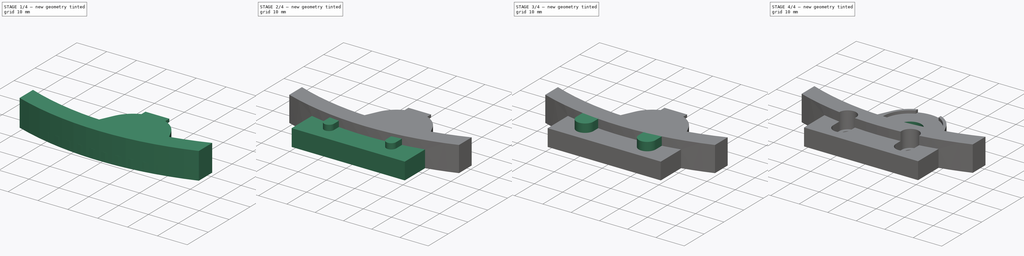
[diagram: build sequence overview — one tinted view per stage of 4, left to right]
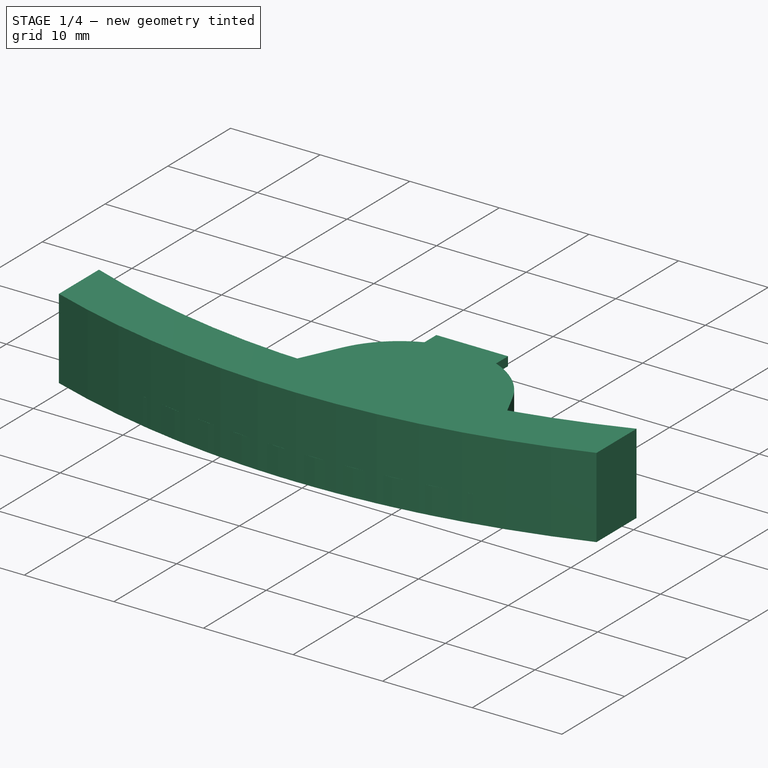
[diagram: stage 1 of 4 — iso view after this stage's code; geometry added in this stage tinted green]
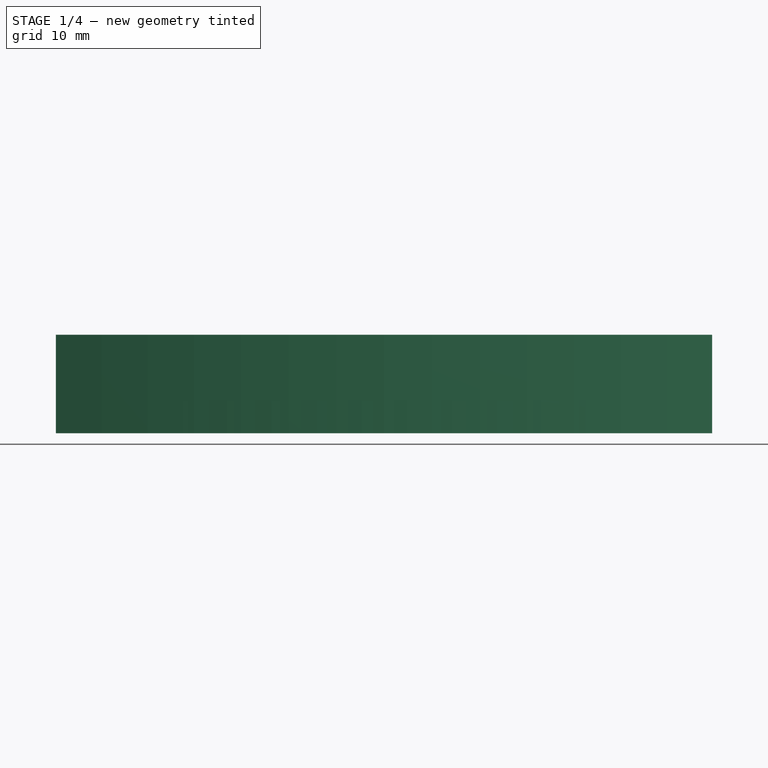
[diagram: stage 1 of 4 — front view after this stage's code; geometry added in this stage tinted green]
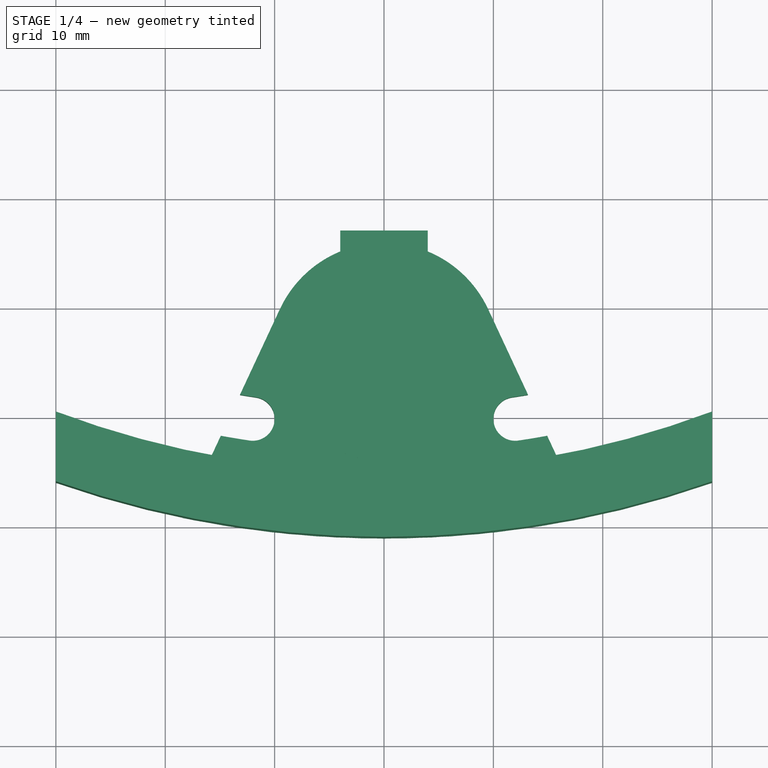
[diagram: stage 1 of 4 — top view after this stage's code; geometry added in this stage tinted green]
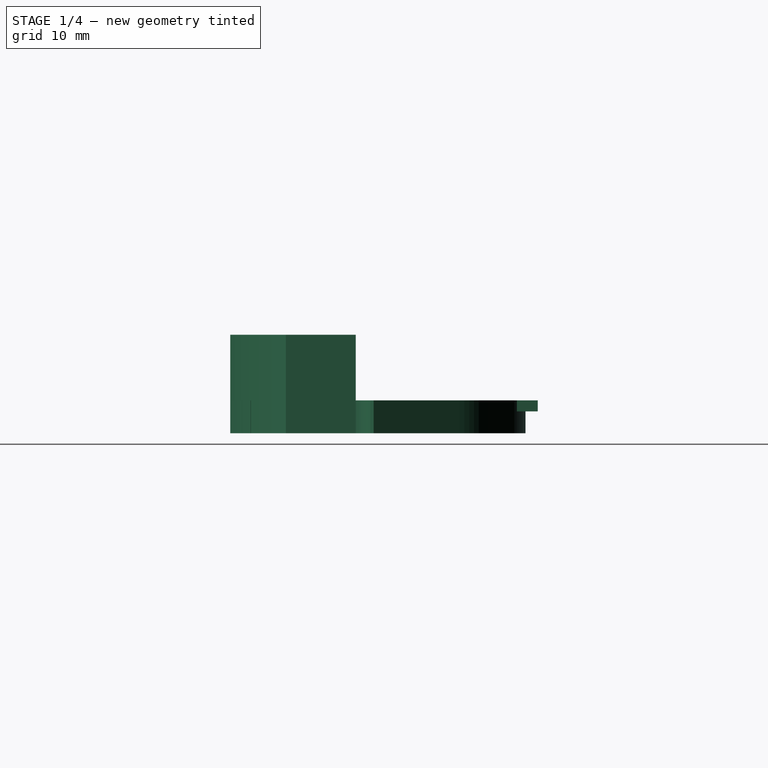
[diagram: stage 1 of 4 — right view after this stage's code; geometry added in this stage tinted green]
FCSTD DOCUMENT  (FreeCAD 0.14R3692 (Git))
Label: Mount_FSR_V2_Base
License: CC-BY 3.0
LicenseURL: http://creativecommons.org/licenses/by/3.0/
objects: Sketcher::SketchObject×7, PartDesign::Pad×6, Part::Cut×3, Part::MultiFuse×1, PartDesign::Pocket×1
note: 25 computed .brp shape members not serialized (recipe doc carries the construction recipe); baked Part::Feature solids carry a one-line shape summary decoded from their .brp

FEATURE [PartDesign::Pad] Pad002  label="Frame_Pad"
  Length = 9
  Length2 = 100
  Sketch = -> Sketch002
  Type = 0
FEATURE [PartDesign::Pad] Pad003  label="Base_Pad"
  Length = 3
  Length2 = 100
  Sketch = -> Sketch001
  Type = 0
FEATURE [Sketcher::SketchObject] Sketch005  label="FsrGroove_Sketch"
  Placement = pos=(0,0,2) rot=(0,0,1;0rad)
  sketch-geometry (4):
    g0: ArcOfCircle CenterX=0 CenterY=-74.5 CenterZ=0 NormalX=0 NormalY=0 NormalZ=1 Radius=9.5 StartAngle=2.0054 EndAngle=7.41938
    g1: LineSegment StartX=-4 StartY=-62.8832 StartZ=0 EndX=4 EndY=-62.8832 EndZ=0
    g2: LineSegment StartX=-4 StartY=-62.8832 StartZ=0 EndX=-4 EndY=-65.8832 EndZ=0
    g3: LineSegment StartX=4 StartY=-62.8832 StartZ=0 EndX=4 EndY=-65.8832 EndZ=0
  constraints (12):
    c: PointOnObject(g0,g-2)
    c: Radius(g0) = 9.5
    c: DistanceY(g-1,g0) = -74.5
    c: Symmetric(g1,g1,g-2)
    c: DistanceX(g-1,g1) = -4
    c: Coincident(g2,g1)
    c: Coincident(g2,g0)
    c: Vertical(g2)
    c: Coincident(g3,g1)
    c: Coincident(g3,g0)
    c: Vertical(g3)
    c: DistanceY(g1,g0) = -3
FEATURE [PartDesign::Pad] Pad005  label="FsrGroove_Pad"
  Length = 1
  Length2 = 100
  Placement = pos=(0,0,2) rot=(0,0,1;0rad)
  Sketch = -> Sketch005
  Type = 0
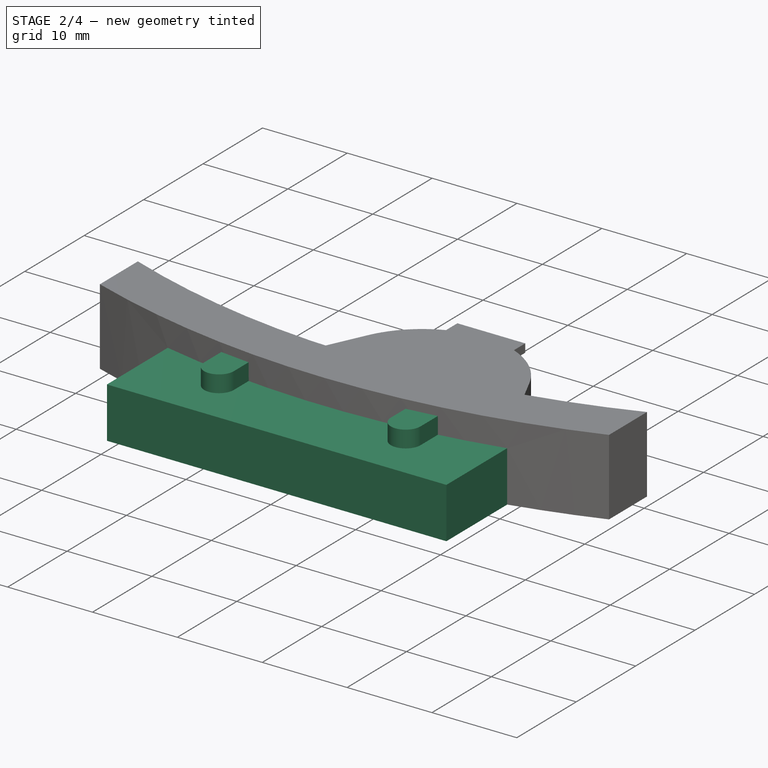
[diagram: stage 2 of 4 — iso view after this stage's code; geometry added in this stage tinted green]
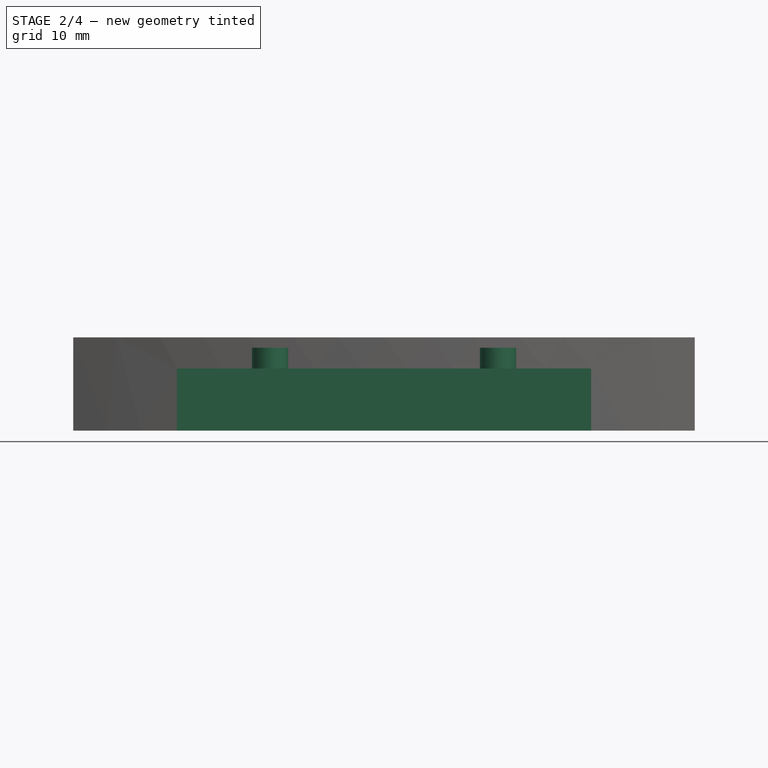
[diagram: stage 2 of 4 — front view after this stage's code; geometry added in this stage tinted green]
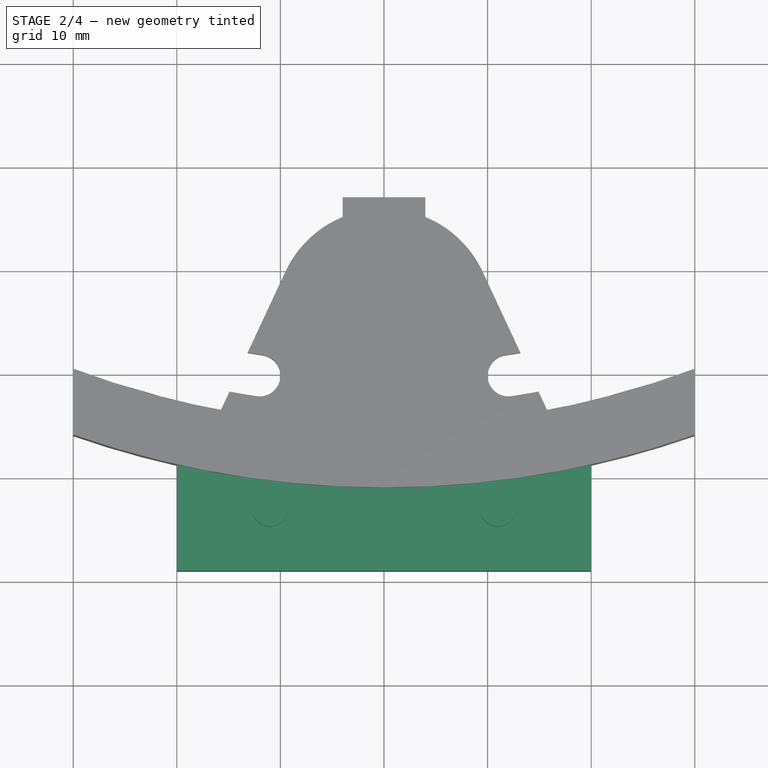
[diagram: stage 2 of 4 — top view after this stage's code; geometry added in this stage tinted green]
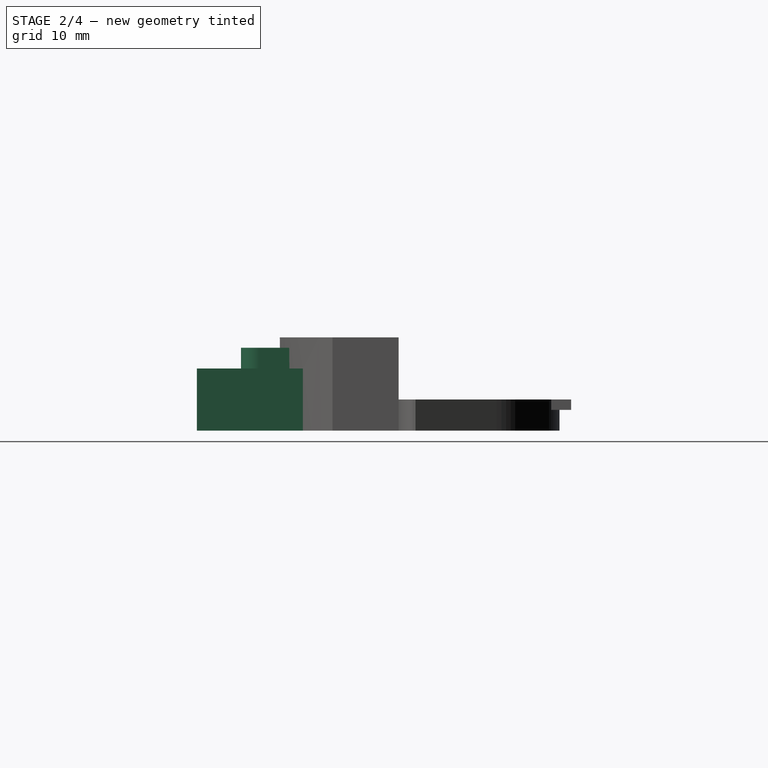
[diagram: stage 2 of 4 — right view after this stage's code; geometry added in this stage tinted green]
FEATURE [Sketcher::SketchObject] Sketch  label="Back_Sketch"
  sketch-geometry (4):
    g0: ArcOfCircle CenterX=0 CenterY=0 CenterZ=0 NormalX=0 NormalY=0 NormalZ=1 Radius=85 StartAngle=4.47487 EndAngle=4.94991
    g1: LineSegment StartX=20 StartY=-82.6136 StartZ=0 EndX=20 EndY=-99 EndZ=0
    g2: LineSegment StartX=20 StartY=-99 StartZ=0 EndX=-20 EndY=-99 EndZ=0
    g3: LineSegment StartX=-20 StartY=-99 StartZ=0 EndX=-20 EndY=-82.6136 EndZ=0
  constraints (11):
    c: Coincident(g0,g-1)
    c: Radius(g0) = 85
    c: Coincident(g1,g2)
    c: Coincident(g2,g3)
    c: Coincident(g3,g0)
    c: Coincident(g1,g0)
    c: Symmetric(g2,g1,g-2)
    c: Perpendicular(g3,g2)
    c: DistanceY(g-1,g1) = -99
    c: DistanceX(g2,g1) = 40
    c: Symmetric(g0,g0,g-2)
FEATURE [Sketcher::SketchObject] Sketch001  label="Base_Sketch"
  sketch-geometry (12):
    g0: ArcOfCircle CenterX=0 CenterY=-74.5 CenterZ=0 NormalX=0 NormalY=0 NormalZ=1 Radius=10.5 StartAngle=0.436329 EndAngle=2.70526
    g1: ArcOfCircle CenterX=0 CenterY=0 CenterZ=0 NormalX=0 NormalY=0 NormalZ=1 Radius=91 StartAngle=4.50876 EndAngle=4.91602
    g2: LineSegment StartX=-18.4028 StartY=-89.1198 StartZ=0 EndX=-14.9187 EndY=-81.6482 EndZ=0
    g3: ArcOfCircle CenterX=0 CenterY=0 CenterZ=0 NormalX=0 NormalY=0 NormalZ=1 Radius=83 StartAngle=4.53166 EndAngle=4.56369
    g4: ArcOfCircle CenterX=0 CenterY=0 CenterZ=0 NormalX=0 NormalY=0 NormalZ=1 Radius=79 StartAngle=4.54492 EndAngle=4.56369
    g5: ArcOfCircle CenterX=-12 CenterY=-80.1062 CenterZ=0 NormalX=0 NormalY=0 NormalZ=1 Radius=2 StartAngle=4.56369 EndAngle=7.70529
    g6: LineSegment StartX=-13.1685 StartY=-77.8947 StartZ=0 EndX=-9.51625 EndY=-70.0625 EndZ=0
    g7: ArcOfCircle CenterX=12 CenterY=-80.1062 CenterZ=0 NormalX=0 NormalY=0 NormalZ=1 Radius=2 StartAngle=1.71949 EndAngle=4.86108
    g8: ArcOfCircle CenterX=0 CenterY=0 CenterZ=0 NormalX=0 NormalY=0 NormalZ=1 Radius=79 StartAngle=4.86108 EndAngle=4.87986
    g9: ArcOfCircle CenterX=0 CenterY=0 CenterZ=0 NormalX=0 NormalY=0 NormalZ=1 Radius=83 StartAngle=4.86108 EndAngle=4.89312
    g10: LineSegment StartX=18.4028 StartY=-89.1198 StartZ=0 EndX=14.9187 EndY=-81.6482 EndZ=0
    g11: LineSegment StartX=9.51625 StartY=-70.0625 StartZ=0 EndX=13.1685 EndY=-77.8947 EndZ=0
  constraints (37):
    c: Radius(g0) = 10.5
    c: DistanceY(g-1,g0) = -74.5
    c: Coincident(g1,g-1)
    c: Coincident(g2,g1)
    c: Coincident(g6,g0)
    c: Tangent(g0,g2)
    c: PointOnObject(g0,g-2)
    c: Coincident(g3,g-1)
    c: Coincident(g4,g-1)
    c: Radius(g3) = 83
    c: Radius(g4) = 79
    c: Distance(g-1,g5) = 81
    c: Tangent(g3,g5)
    c: Tangent(g4,g5)
    c: Coincident(g5,g3)
    c: Coincident(g5,g4)
    c: DistanceX(g-1,g5) = -12
    c: Coincident(g2,g3)
    c: Coincident(g6,g4)
    c: Tangent(g2,g6)
    c: Symmetric(g4,g8,g-2)
    c: Symmetric(g5,g7,g-2)
    c: Symmetric(g2,g9,g-2)
    c: Coincident(g8,g-1)
    c: Coincident(g8,g7)
    c: Coincident(g9,g-1)
    c: Coincident(g9,g7)
    c: Coincident(g10,g1)
    c: Coincident(g10,g9)
    c: Coincident(g11,g0)
    c: Coincident(g11,g8)
    c: Symmetric(g0,g0,g-2)
    c: Symmetric(g7,g4,g-2)
    c: Symmetric(g3,g7,g-2)
    c: Symmetric(g1,g1,g-2)
    c: Angle(g-2,g2) = 2.70526
    c: Radius(g1) = 91
FEATURE [Sketcher::SketchObject] Sketch002  label="Frame_Sketch"
  sketch-geometry (4):
    g0: ArcOfCircle CenterX=0 CenterY=0 CenterZ=0 NormalX=0 NormalY=0 NormalZ=1 Radius=85 StartAngle=4.35168 EndAngle=5.0731
    g1: ArcOfCircle CenterX=0 CenterY=0 CenterZ=0 NormalX=0 NormalY=0 NormalZ=1 Radius=91 StartAngle=4.37643 EndAngle=5.04834
    g2: LineSegment StartX=30 StartY=-79.5299 StartZ=0 EndX=30 EndY=-85.9127 EndZ=0
    g3: LineSegment StartX=-30 StartY=-85.9127 StartZ=0 EndX=-30 EndY=-79.5299 EndZ=0
  constraints (12):
    c: Coincident(g0,g-1)
    c: Coincident(g1,g-1)
    c: Radius(g0) = 85
    c: Vertical(g3)
    c: Coincident(g3,g0)
    c: Coincident(g2,g0)
    c: Coincident(g2,g1)
    c: Coincident(g3,g1)
    c: Symmetric(g0,g0,g-2)
    c: DistanceX(g1,g1) = 60
    c: Symmetric(g1,g1,g-2)
    c: Radius(g1) = 91
FEATURE [Sketcher::SketchObject] Sketch003  label="ThroughHole_Sketch"
  sketch-geometry (8):
    g0: ArcOfCircle CenterX=-11 CenterY=-90 CenterZ=0 NormalX=0 NormalY=0 NormalZ=1 Radius=1.75 StartAngle=6.28318 EndAngle=9.42478
    g1: ArcOfCircle CenterX=11 CenterY=-90 CenterZ=0 NormalX=0 NormalY=0 NormalZ=1 Radius=1.75 StartAngle=2.58942e-07 EndAngle=3.1416
    g2: ArcOfCircle CenterX=-11 CenterY=-93 CenterZ=0 NormalX=0 NormalY=0 NormalZ=1 Radius=1.75 StartAngle=3.14159 EndAngle=6.28319
    g3: ArcOfCircle CenterX=11 CenterY=-93 CenterZ=0 NormalX=0 NormalY=0 NormalZ=1 Radius=1.75 StartAngle=3.14159 EndAngle=6.28319
    g4: LineSegment StartX=-12.75 StartY=-93 StartZ=0 EndX=-12.75 EndY=-90 EndZ=0
    g5: LineSegment StartX=9.25 StartY=-90 StartZ=0 EndX=9.25 EndY=-93 EndZ=0
    g6: LineSegment StartX=12.75 StartY=-90 StartZ=0 EndX=12.75 EndY=-93 EndZ=0
    g7: LineSegment StartX=-9.25 StartY=-93 StartZ=0 EndX=-9.25 EndY=-90 EndZ=0
  constraints (24):
    c: DistanceY(g-1,g0) = -90
    c: Radius(g2) = 1.75
    c: DistanceY(g2,g0) = 3
    c: Coincident(g4,g2)
    c: Coincident(g0,g4)
    c: Coincident(g5,g1)
    c: Coincident(g5,g3)
    c: Coincident(g6,g1)
    c: Coincident(g6,g3)
    c: Symmetric(g0,g1,g-2)
    c: Symmetric(g3,g2,g-2)
    c: Tangent(g4,g0)
    c: Tangent(g4,g2)
    c: Coincident(g7,g2)
    c: Coincident(g7,g0)
    c: Vertical(g7)
    c: Tangent(g7,g2)
    c: Tangent(g7,g0)
    c: Vertical(g4)
    c: Symmetric(g1,g0,g-2)
    c: Symmetric(g2,g3,g-2)
    c: Symmetric(g0,g1,g-2)
    c: Symmetric(g2,g3,g-2)
    c: DistanceX(g-1,g2) = -11
FEATURE [PartDesign::Pad] Pad  label="ThroughHole_Pad"
  Length = 8
  Length2 = 100
  Sketch = -> Sketch003
  Type = 0
FEATURE [PartDesign::Pad] Pad001  label="Back_Pad"
  Length = 6
  Length2 = 100
  Sketch = -> Sketch
  Type = 0
FEATURE [Part::MultiFuse] Fusion
  Shapes = -> [Pad001,Pad002,Pad003]
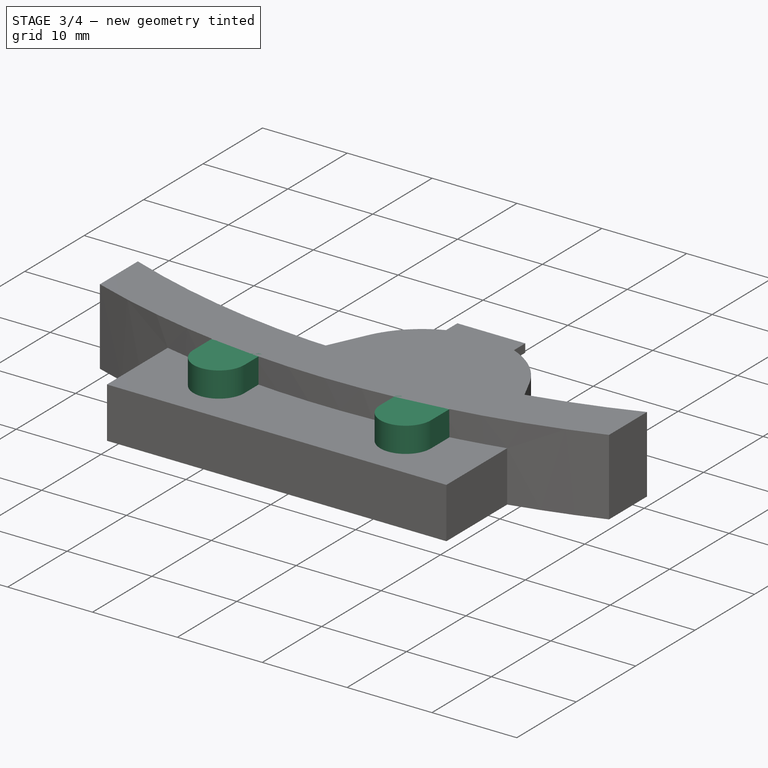
[diagram: stage 3 of 4 — iso view after this stage's code; geometry added in this stage tinted green]
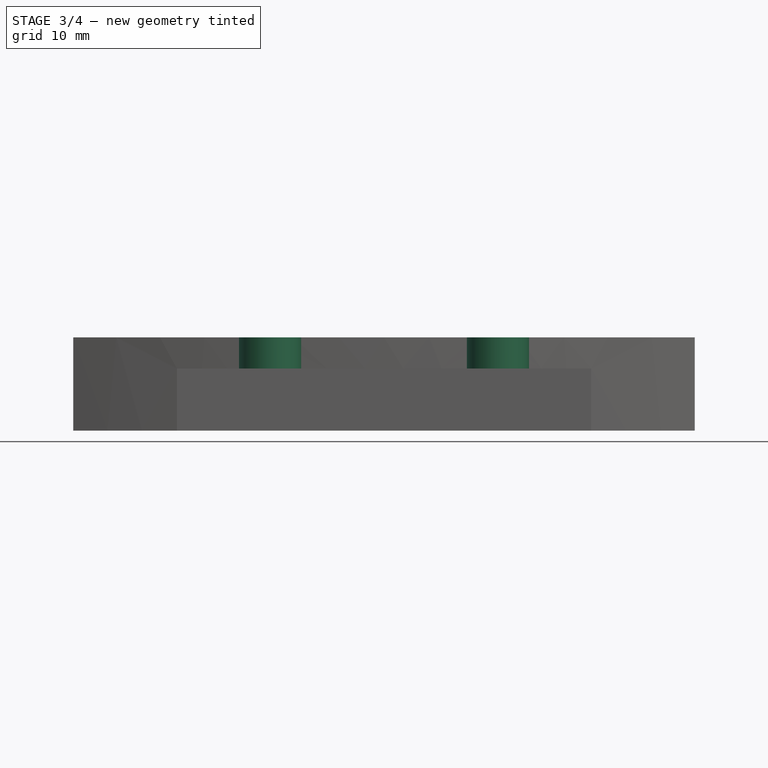
[diagram: stage 3 of 4 — front view after this stage's code; geometry added in this stage tinted green]
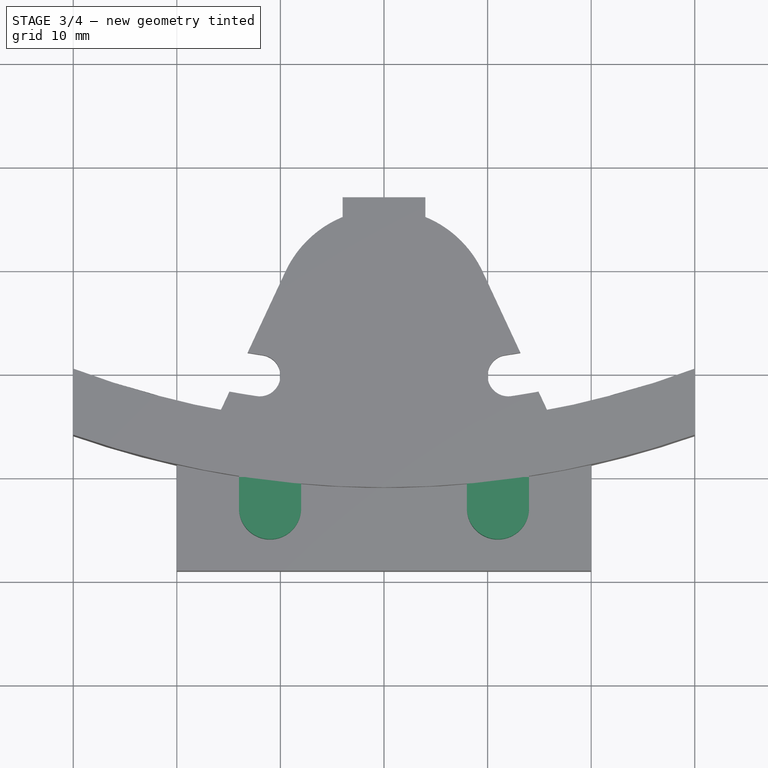
[diagram: stage 3 of 4 — top view after this stage's code; geometry added in this stage tinted green]
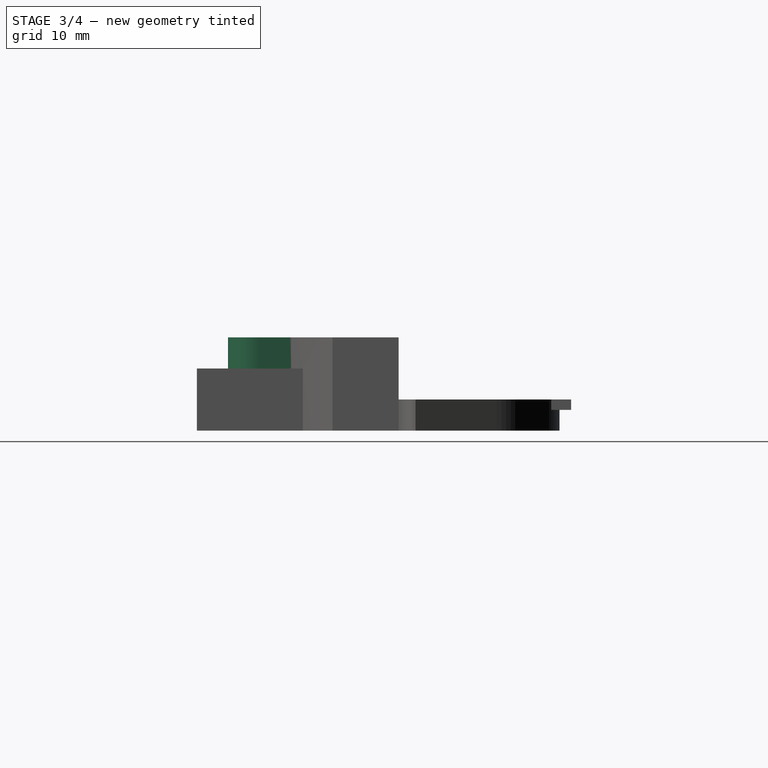
[diagram: stage 3 of 4 — right view after this stage's code; geometry added in this stage tinted green]
FEATURE [Sketcher::SketchObject] Sketch004  label="CounterboreHole_Sketch"
  Placement = pos=(0,0,3) rot=(0,0,1;0rad)
  sketch-geometry (8):
    g0: ArcOfCircle CenterX=-11 CenterY=-90 CenterZ=0 NormalX=0 NormalY=0 NormalZ=1 Radius=3 StartAngle=4.42399e-06 EndAngle=3.14159
    g1: ArcOfCircle CenterX=-11 CenterY=-93 CenterZ=0 NormalX=0 NormalY=0 NormalZ=1 Radius=3 StartAngle=3.14159 EndAngle=6.28318
    g2: ArcOfCircle CenterX=11 CenterY=-90 CenterZ=0 NormalX=0 NormalY=0 NormalZ=1 Radius=3 StartAngle=2.00499e-07 EndAngle=3.14159
    g3: ArcOfCircle CenterX=11 CenterY=-93 CenterZ=0 NormalX=0 NormalY=0 NormalZ=1 Radius=3 StartAngle=3.14159 EndAngle=6.28319
    g4: LineSegment StartX=8 StartY=-90 StartZ=0 EndX=8 EndY=-93 EndZ=0
    g5: LineSegment StartX=14 StartY=-90 StartZ=0 EndX=14 EndY=-93 EndZ=0
    g6: LineSegment StartX=-14 StartY=-90 StartZ=0 EndX=-14 EndY=-93 EndZ=0
    g7: LineSegment StartX=-8 StartY=-93 StartZ=0 EndX=-8 EndY=-90 EndZ=0
  constraints (24):
    c: DistanceY(g-1,g0) = -90
    c: Radius(g1) = 3
    c: Symmetric(g2,g0,g-2)
    c: DistanceY(g0,g1) = -3
    c: Symmetric(g3,g1,g-2)
    c: Coincident(g4,g2)
    c: Coincident(g4,g3)
    c: Coincident(g5,g2)
    c: Coincident(g5,g3)
    c: DistanceX(g-1,g1) = -11
    c: Symmetric(g0,g2,g-2)
    c: Symmetric(g1,g3,g-2)
    c: Symmetric(g2,g0,g-2)
    c: Symmetric(g1,g3,g-2)
    c: Coincident(g6,g0)
    c: Coincident(g6,g1)
    c: Vertical(g6)
    c: Tangent(g6,g1)
    c: Tangent(g6,g0)
    c: Coincident(g7,g1)
    c: Coincident(g7,g0)
    c: Vertical(g7)
    c: Tangent(g7,g1)
    c: Tangent(g7,g0)
FEATURE [PartDesign::Pad] Pad004  label="CounterboreHole_Pad"
  Length = 6
  Length2 = 100
  Placement = pos=(0,0,3) rot=(0,0,1;0rad)
  Sketch = -> Sketch004
  Type = 0
FEATURE [Part::Cut] Cut  label="ThroughHoles_Cut"
  Base = -> Fusion
  Tool = -> Pad
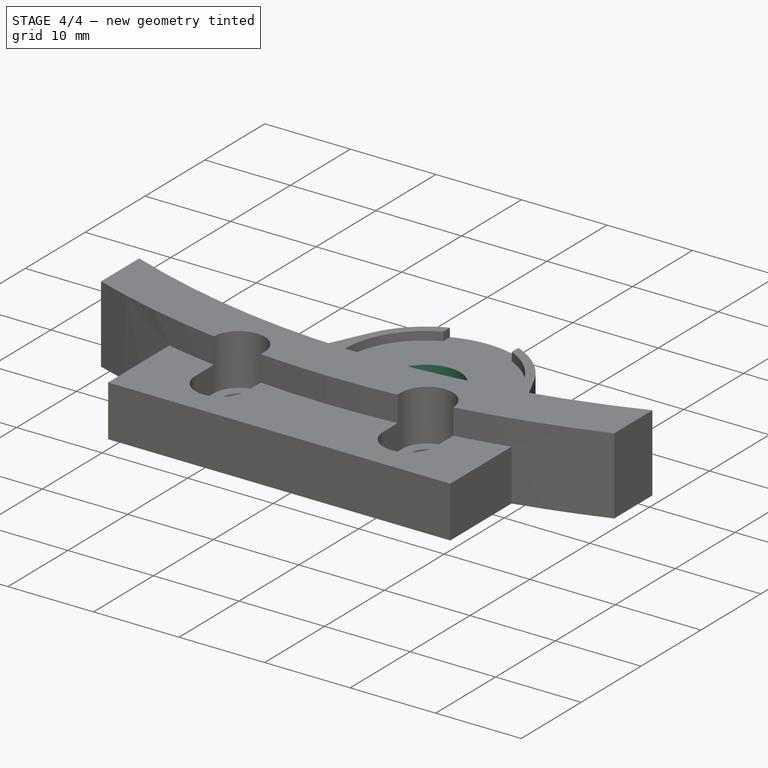
[diagram: stage 4 of 4 — iso view after this stage's code; geometry added in this stage tinted green]
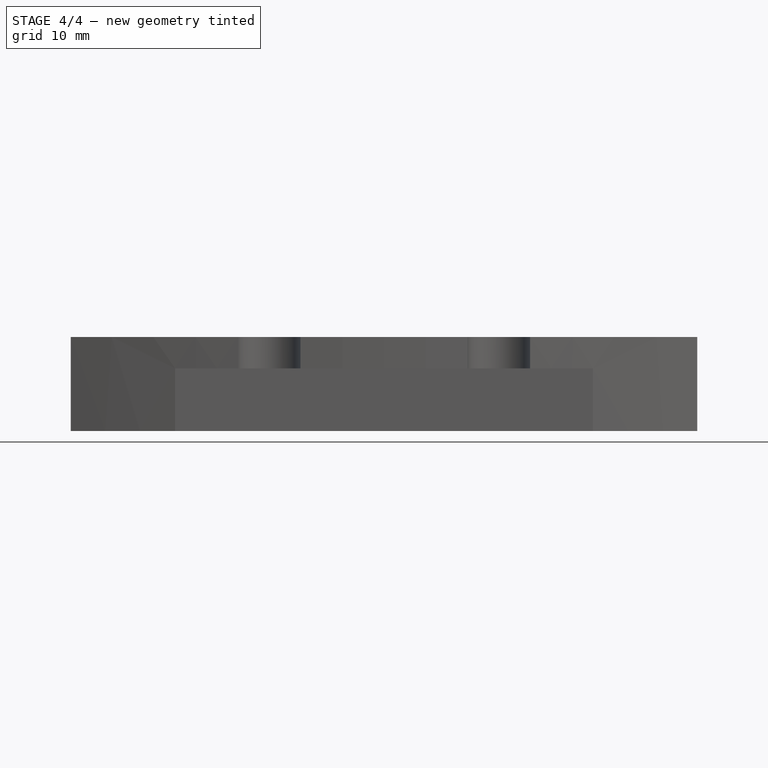
[diagram: stage 4 of 4 — front view after this stage's code; geometry added in this stage tinted green]
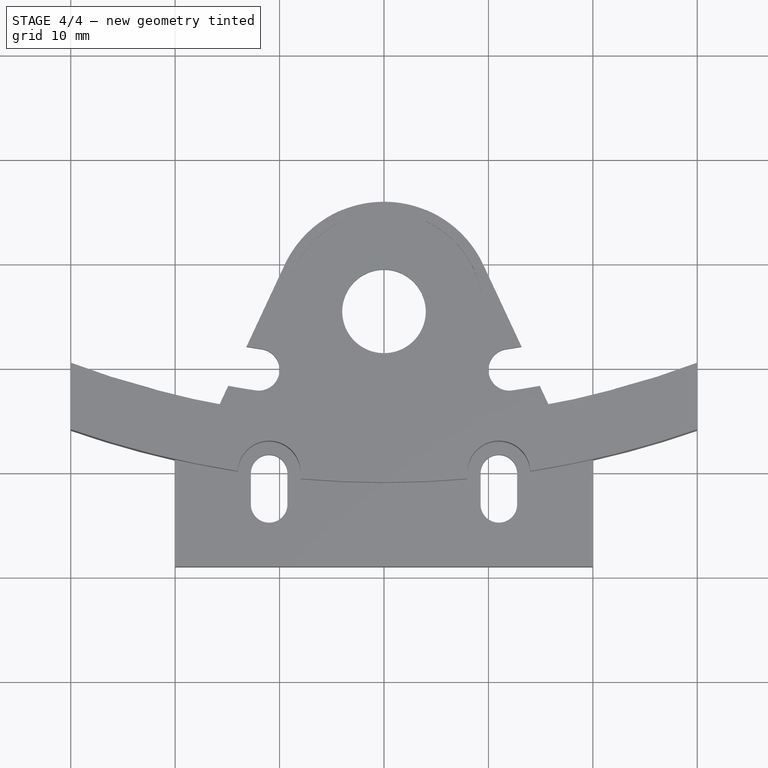
[diagram: stage 4 of 4 — top view after this stage's code; geometry added in this stage tinted green]
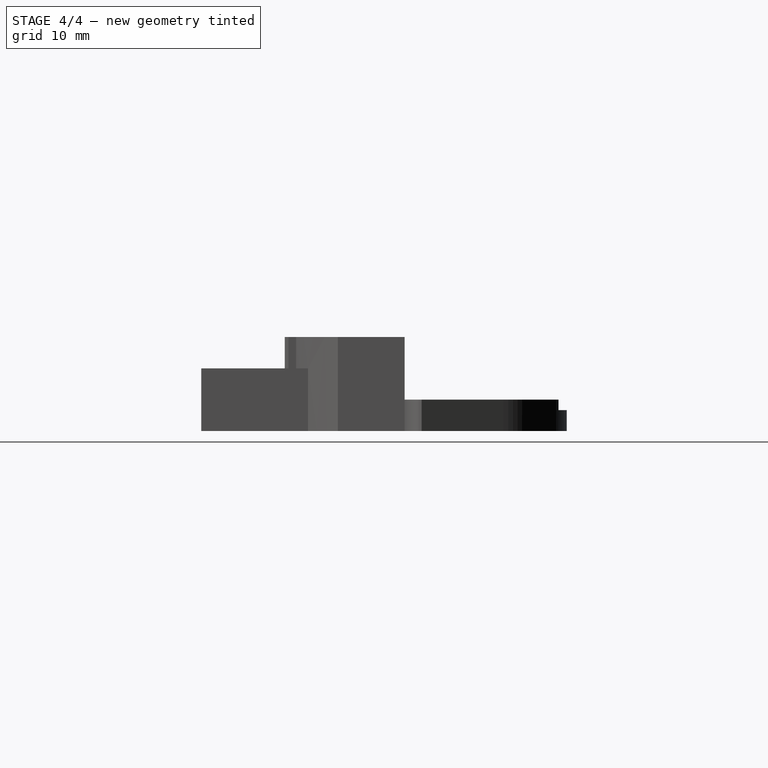
[diagram: stage 4 of 4 — right view after this stage's code; geometry added in this stage tinted green]
FEATURE [Part::Cut] Cut001  label="CounterboreHoles_Cut"
  Base = -> Cut
  Tool = -> Pad004
FEATURE [Part::Cut] Cut002  label="FsrGroove_Cut"
  Base = -> Cut001
  Tool = -> Pad005
FEATURE [Sketcher::SketchObject] Sketch006  label="CenterHole_Sketch"
  ExternalGeometry = -> [Cut002]
  Placement = pos=(0,0,2) rot=(0,0,1;0rad)
  Support = -> Cut002 [Face6]
  sketch-geometry (1):
    g0: Circle CenterX=0 CenterY=-74.5 CenterZ=0 NormalX=0 NormalY=0 NormalZ=1 Radius=4
  constraints (2):
    c: Coincident(g0,g-3)
    c: Radius(g0) = 4
FEATURE [PartDesign::Pocket] Pocket  label="CenterHole_Pocket"
  Length = 5
  Sketch = -> Sketch006
  Type = 1
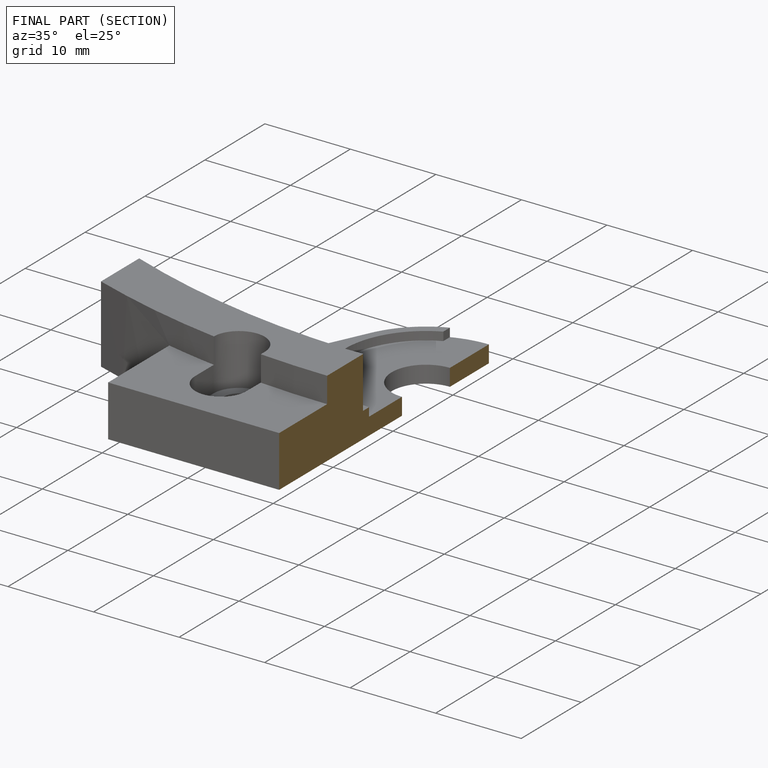
[diagram: finished part — half-section view (interior)]
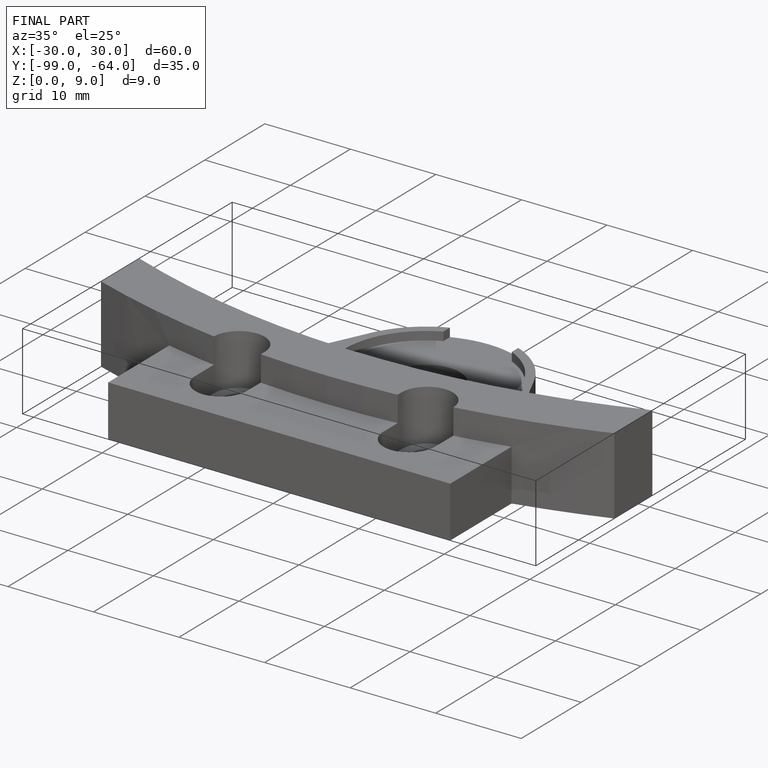
[diagram: finished part — iso view with bounding-box wireframe]
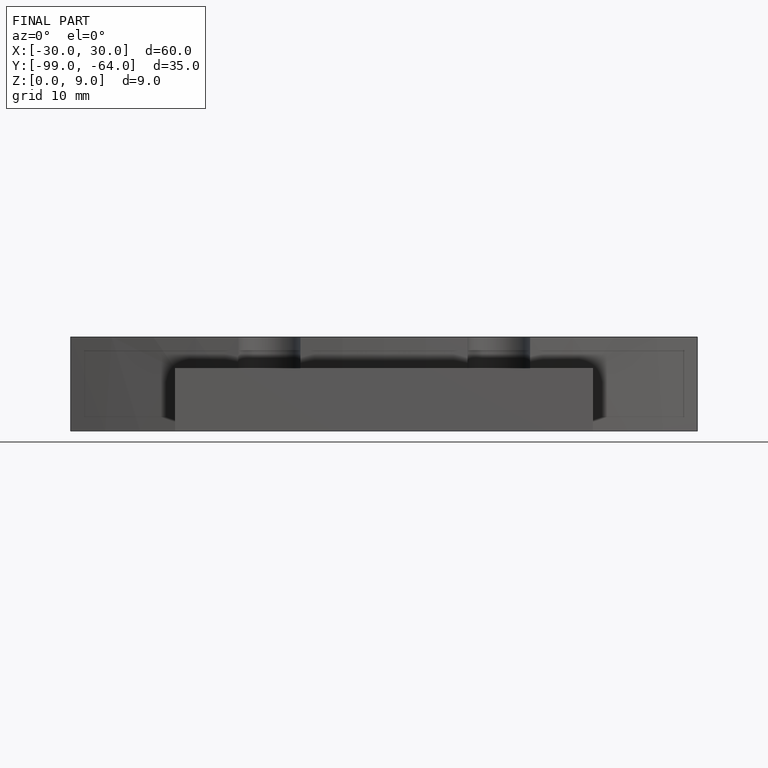
[diagram: finished part — front view with bounding-box wireframe]
